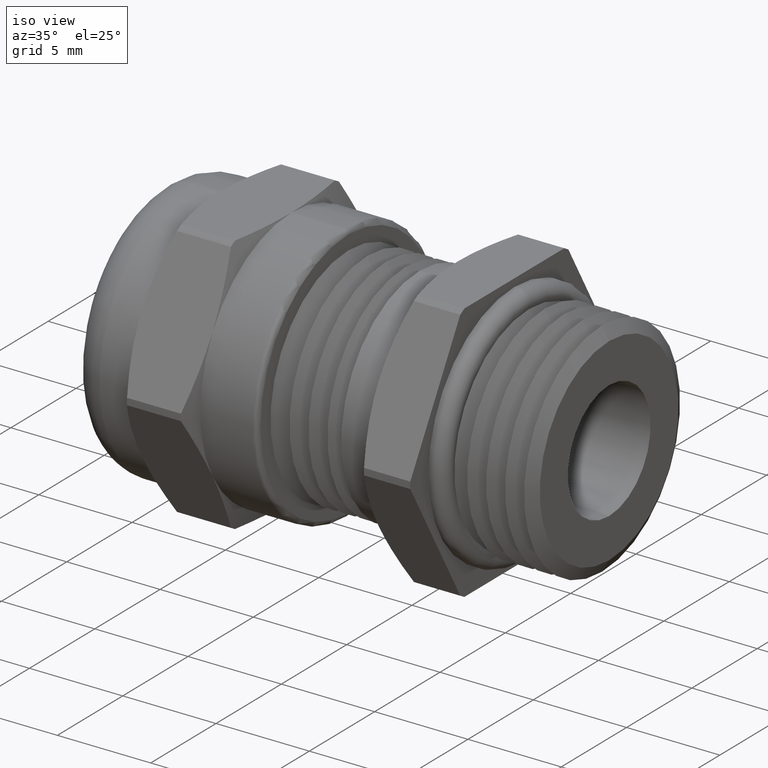
[diagram: clean part render]
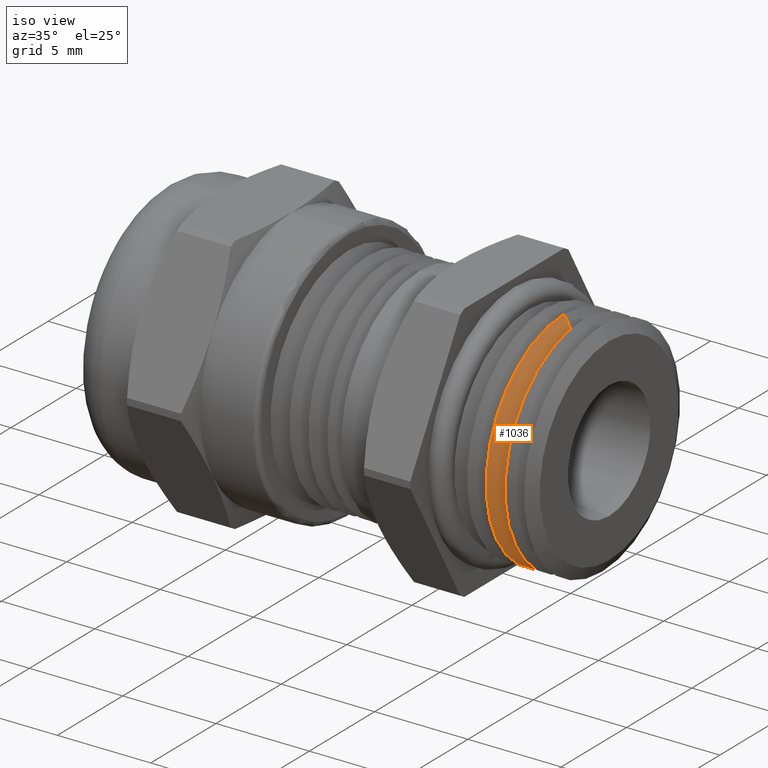
[diagram: same view with one face highlighted and labeled with its STEP entity id]
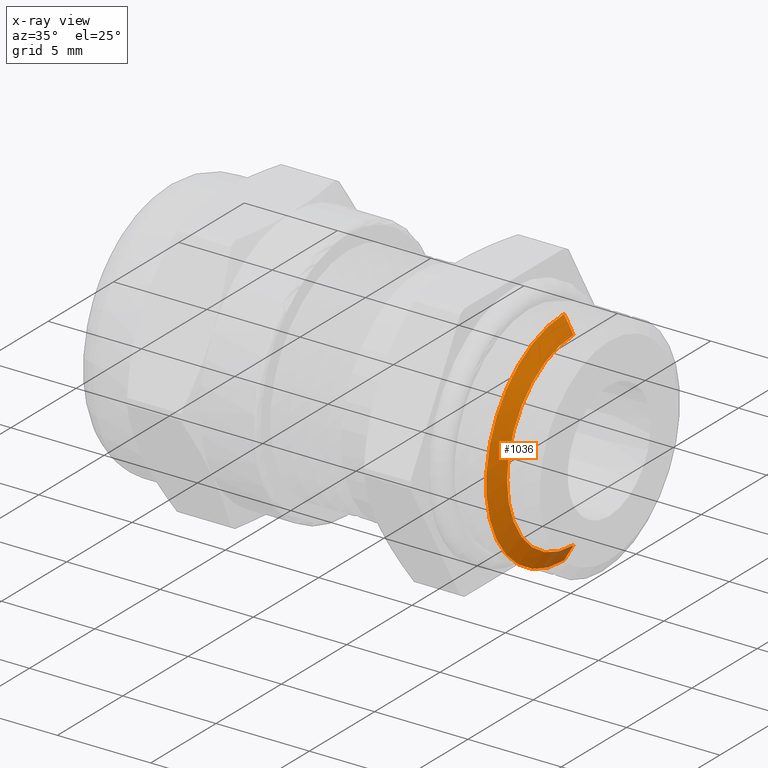
[diagram: x-ray of the same camera — body ghosted, the highlighted face saturated]
A machine part, iso view. The second image highlights one B-rep face of the part: STEP entity #1036.
The next image is the same camera in x-ray: the body ghosted, the highlighted face saturated — about 4% of this face is hidden behind the body in this view.
In plain terms, the highlighted conical surface has half-angle 60.001 deg.
Its self-contained STEP definition (entity closure, byte-faithful):
#12 = EDGE_CURVE ( 'NONE', #23, #14, #1214, .T. ) ;
#14 = VERTEX_POINT ( 'NONE', #1267 ) ;
#18 = VERTEX_POINT ( 'NONE', #1261 ) ;
#23 = VERTEX_POINT ( 'NONE', #1254 ) ;
#24 = VERTEX_POINT ( 'NONE', #1253 ) ;
#34 = EDGE_CURVE ( 'NONE', #24, #18, #1299, .T. ) ;
#320 = EDGE_CURVE ( 'NONE', #14, #18, #1858, .T. ) ;
#1036 = ADVANCED_FACE ( 'NONE', ( #3099 ), #3094, .T. ) ;
#1037 = EDGE_LOOP ( 'NONE', ( #1038, #1039, #1041, #1042 ) ) ;
#1038 = ORIENTED_EDGE ( 'NONE', *, *, #34, .F. ) ;
#1039 = ORIENTED_EDGE ( 'NONE', *, *, #1040, .T. ) ;
#1040 = EDGE_CURVE ( 'NONE', #24, #23, #3088, .T. ) ;
#1041 = ORIENTED_EDGE ( 'NONE', *, *, #12, .T. ) ;
#1042 = ORIENTED_EDGE ( 'NONE', *, *, #320, .T. ) ;
#1211 = DIRECTION ( 'NONE',  ( -0.4999848849291451700, 0.0000000000000000000, 0.8660341302987946100 ) ) ;
#1212 = VECTOR ( 'NONE', #1211, 39.37007874015748900 ) ;
#1213 = CARTESIAN_POINT ( 'NONE',  ( 0.3799999999999998900, 0.0000000000000000000, 0.2349995636676869300 ) ) ;
#1214 = LINE ( 'NONE', #1213, #1212 ) ;
#1253 = CARTESIAN_POINT ( 'NONE',  ( 0.3999993954002117900, 2.665788899576033600E-017, -0.2003581984504589900 ) ) ;
#1254 = CARTESIAN_POINT ( 'NONE',  ( 0.3999993954002117900, 0.0000000000000000000, 0.2003581984504589900 ) ) ;
#1261 = CARTESIAN_POINT ( 'NONE',  ( 0.3800008061086810300, 2.877897535128445300E-017, -0.2349981673902159800 ) ) ;
#1267 = CARTESIAN_POINT ( 'NONE',  ( 0.3800008061086810300, 0.0000000000000000000, 0.2349981673902159800 ) ) ;
#1296 = DIRECTION ( 'NONE',  ( -0.4999848849291451700, 1.060585925622780500E-016, -0.8660341302987946100 ) ) ;
#1297 = VECTOR ( 'NONE', #1296, 39.37007874015748900 ) ;
#1298 = CARTESIAN_POINT ( 'NONE',  ( 0.3799999999999998900, 2.877914634466574500E-017, -0.2349995636676869300 ) ) ;
#1299 = LINE ( 'NONE', #1298, #1297 ) ;
#1799 = CARTESIAN_POINT ( 'NONE',  ( 0.3800008061086810300, 0.0000000000000000000, 0.0000000000000000000 ) ) ;
#1855 = DIRECTION ( 'NONE',  ( 0.0000000000000000000, 0.0000000000000000000, 1.000000000000000000 ) ) ;
#1856 = DIRECTION ( 'NONE',  ( 1.000000000000000000, 0.0000000000000000000, 0.0000000000000000000 ) ) ;
#1857 = AXIS2_PLACEMENT_3D ( 'NONE', #1799, #1856, #1855 ) ;
#1858 = CIRCLE ( 'NONE', #1857, 0.2349981673902159800 ) ;
#3088 = CIRCLE ( 'NONE', #3151, 0.2003581984504589900 ) ;
#3089 = DIRECTION ( 'NONE',  ( 0.0000000000000000000, 0.0000000000000000000, 1.000000000000000000 ) ) ;
#3090 = DIRECTION ( 'NONE',  ( -1.000000000000000000, 0.0000000000000000000, 0.0000000000000000000 ) ) ;
#3091 = CARTESIAN_POINT ( 'NONE',  ( 0.3799999999999998900, 0.0000000000000000000, 0.0000000000000000000 ) ) ;
#3092 = AXIS2_PLACEMENT_3D ( 'NONE', #3091, #3090, #3089 ) ;
#3093 = CARTESIAN_POINT ( 'NONE',  ( 0.3999993954002117900, 0.0000000000000000000, 0.0000000000000000000 ) ) ;
#3094 = CONICAL_SURFACE ( 'NONE', #3092, 0.2349995636676869300, 1.047215004489116900 ) ;
#3099 = FACE_OUTER_BOUND ( 'NONE', #1037, .T. ) ;
#3149 = DIRECTION ( 'NONE',  ( 0.0000000000000000000, 0.0000000000000000000, 1.000000000000000000 ) ) ;
#3150 = DIRECTION ( 'NONE',  ( -1.000000000000000000, 0.0000000000000000000, 0.0000000000000000000 ) ) ;
#3151 = AXIS2_PLACEMENT_3D ( 'NONE', #3093, #3150, #3149 ) ;